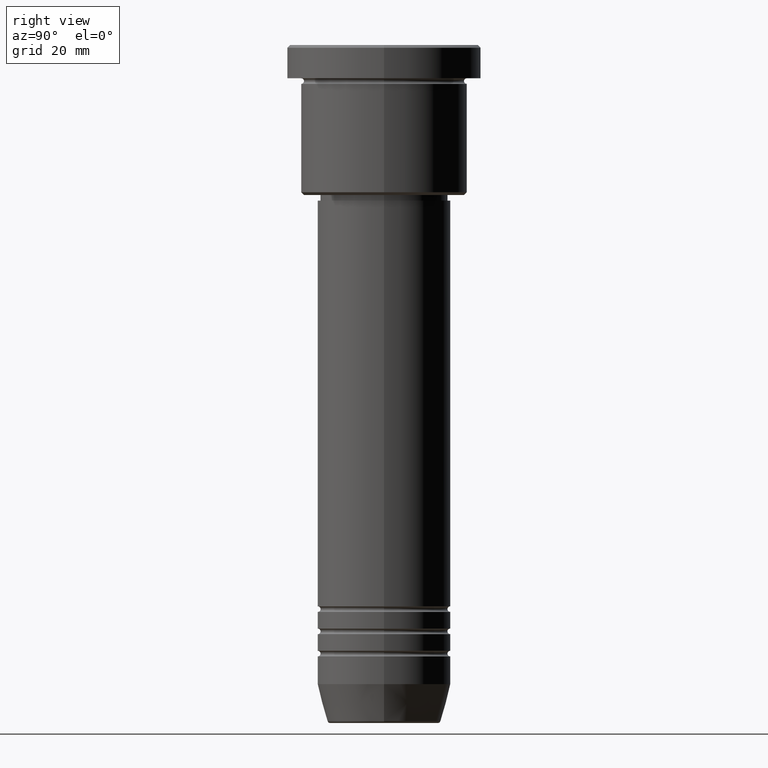
[diagram: clean part render]
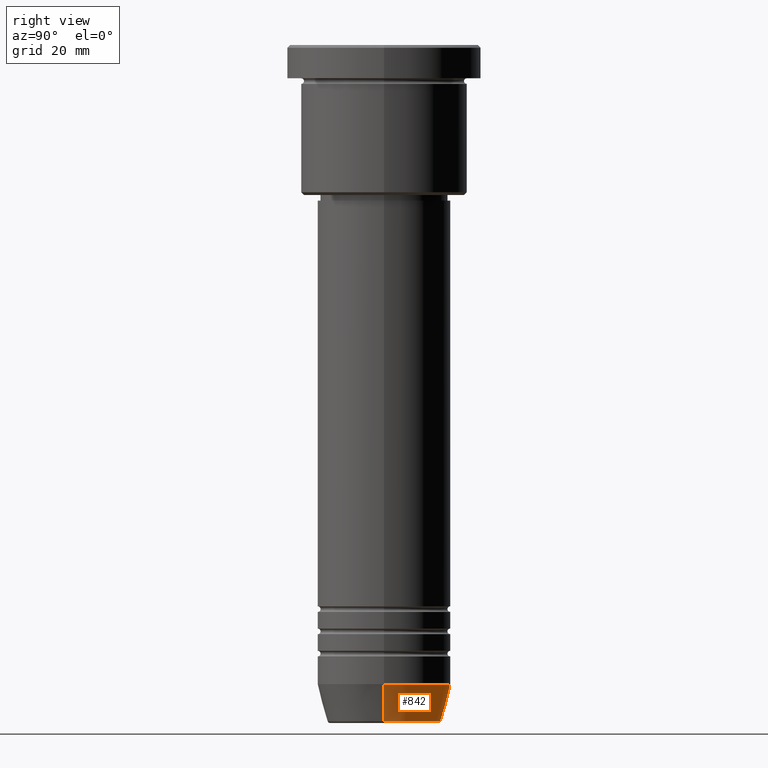
[diagram: same view with one face highlighted and labeled with its STEP entity id]
A machine part, right view. The second image highlights one B-rep face of the part: STEP entity #842.
In plain terms, the highlighted conical surface has half-angle 15 deg.
Its self-contained STEP definition (entity closure, byte-faithful):
#1 = CARTESIAN_POINT ( 'NONE',  ( -12.00000000000000000, 1.469576158976823947E-15, -115.0000000000000000 ) ) ;
#5 = DIRECTION ( 'NONE',  ( -0.000000000000000000, -0.000000000000000000, 1.000000000000000000 ) ) ;
#88 = DIRECTION ( 'NONE',  ( 1.000000000000000000, 0.000000000000000000, 0.000000000000000000 ) ) ;
#113 = CARTESIAN_POINT ( 'NONE',  ( -12.00000000000000000, 1.469576158976823947E-15, -115.0000000000000000 ) ) ;
#136 = AXIS2_PLACEMENT_3D ( 'NONE', #687, #5, #88 ) ;
#203 = DIRECTION ( 'NONE',  ( -0.000000000000000000, -0.000000000000000000, 1.000000000000000000 ) ) ;
#223 = VERTEX_POINT ( 'NONE', #113 ) ;
#226 = VERTEX_POINT ( 'NONE', #290 ) ;
#233 = VERTEX_POINT ( 'NONE', #391 ) ;
#290 = CARTESIAN_POINT ( 'NONE',  ( 10.22365507213718949, 0.000000000000000000, -121.6294095225512564 ) ) ;
#340 = ORIENTED_EDGE ( 'NONE', *, *, #601, .F. ) ;
#382 = DIRECTION ( 'NONE',  ( -0.2588190451025213501, 3.169619151431772337E-17, 0.9659258262890680902 ) ) ;
#391 = CARTESIAN_POINT ( 'NONE',  ( 12.00000000000000000, 0.000000000000000000, -115.0000000000000000 ) ) ;
#404 = FACE_OUTER_BOUND ( 'NONE', #749, .T. ) ;
#432 = EDGE_CURVE ( 'NONE', #459, #223, #446, .T. ) ;
#439 = CIRCLE ( 'NONE', #569, 10.22365507213718949 ) ;
#446 = LINE ( 'NONE', #1, #917 ) ;
#459 = VERTEX_POINT ( 'NONE', #839 ) ;
#493 = CARTESIAN_POINT ( 'NONE',  ( 12.00000000000000000, 0.000000000000000000, -115.0000000000000000 ) ) ;
#540 = ORIENTED_EDGE ( 'NONE', *, *, #432, .T. ) ;
#568 = VECTOR ( 'NONE', #1152, 1000.000000000000000 ) ;
#569 = AXIS2_PLACEMENT_3D ( 'NONE', #716, #636, #897 ) ;
#601 = EDGE_CURVE ( 'NONE', #226, #233, #952, .T. ) ;
#636 = DIRECTION ( 'NONE',  ( -0.000000000000000000, -0.000000000000000000, 1.000000000000000000 ) ) ;
#687 = CARTESIAN_POINT ( 'NONE',  ( 0.000000000000000000, 0.000000000000000000, -115.0000000000000000 ) ) ;
#716 = CARTESIAN_POINT ( 'NONE',  ( 0.000000000000000000, 0.000000000000000000, -121.6294095225512564 ) ) ;
#729 = ORIENTED_EDGE ( 'NONE', *, *, #1171, .F. ) ;
#743 = DIRECTION ( 'NONE',  ( 1.000000000000000000, 0.000000000000000000, 0.000000000000000000 ) ) ;
#749 = EDGE_LOOP ( 'NONE', ( #894, #540, #729, #340 ) ) ;
#755 = EDGE_CURVE ( 'NONE', #226, #459, #439, .T. ) ;
#772 = CARTESIAN_POINT ( 'NONE',  ( 0.000000000000000000, 0.000000000000000000, -115.0000000000000000 ) ) ;
#839 = CARTESIAN_POINT ( 'NONE',  ( -10.22365507213718949, 1.360806402472382744E-15, -121.6294095225512564 ) ) ;
#842 = ADVANCED_FACE ( 'NONE', ( #404 ), #1168, .T. ) ;
#894 = ORIENTED_EDGE ( 'NONE', *, *, #755, .T. ) ;
#897 = DIRECTION ( 'NONE',  ( 1.000000000000000000, 0.000000000000000000, 0.000000000000000000 ) ) ;
#917 = VECTOR ( 'NONE', #382, 1000.000000000000000 ) ;
#923 = CIRCLE ( 'NONE', #136, 12.00000000000000000 ) ;
#952 = LINE ( 'NONE', #493, #568 ) ;
#1075 = AXIS2_PLACEMENT_3D ( 'NONE', #772, #203, #743 ) ;
#1152 = DIRECTION ( 'NONE',  ( 0.2588190451025213501, 0.000000000000000000, 0.9659258262890680902 ) ) ;
#1168 = CONICAL_SURFACE ( 'NONE', #1075, 12.00000000000000000, 0.2617993877991500740 ) ;
#1171 = EDGE_CURVE ( 'NONE', #233, #223, #923, .T. ) ;